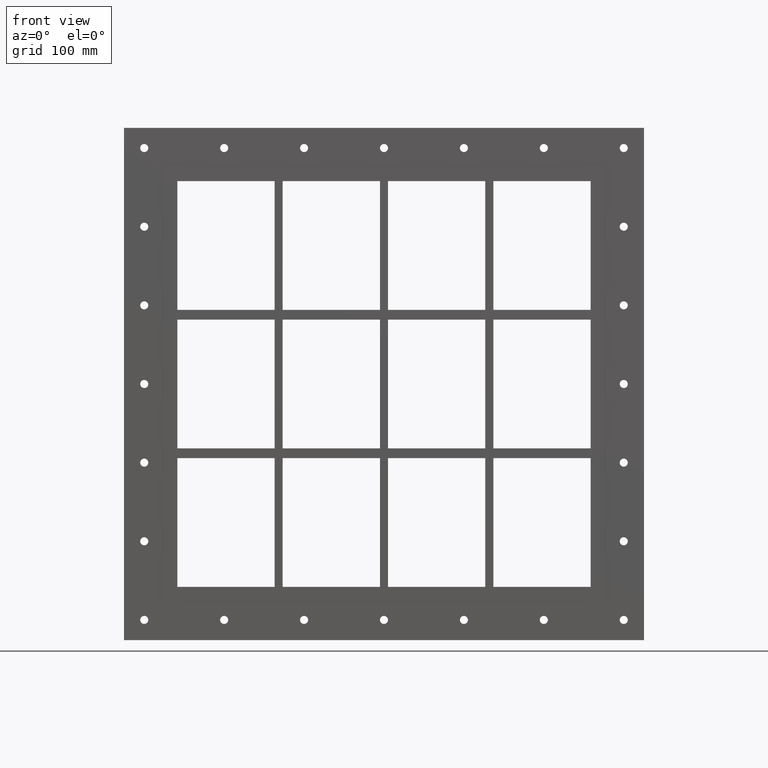
[diagram: clean part render]
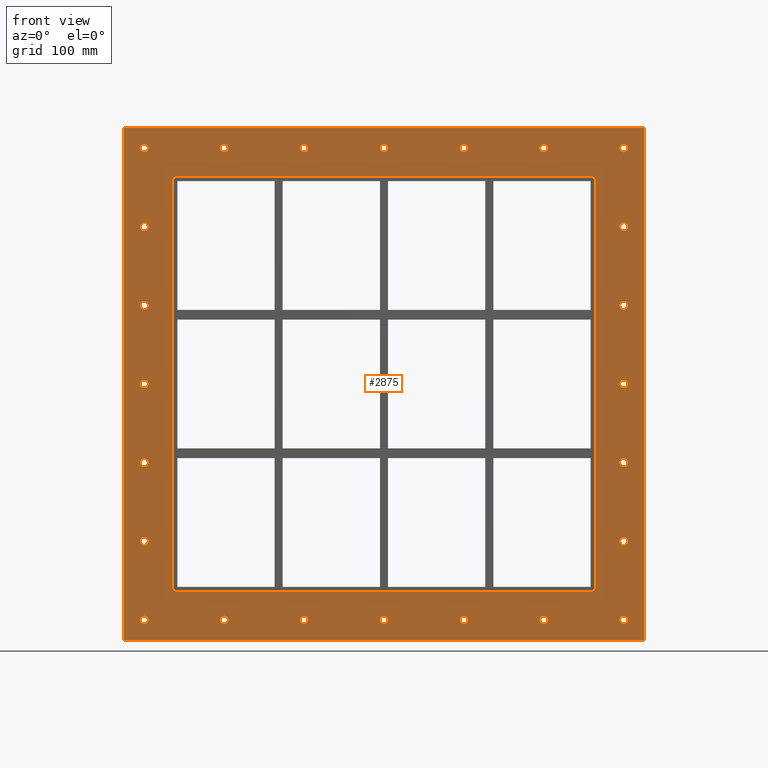
[diagram: same view with one face highlighted and labeled with its STEP entity id]
A machine part, front view. The second image highlights one B-rep face of the part: STEP entity #2875.
In plain terms, the highlighted planar face has unit normal (0, 1, 0).
Its self-contained STEP definition (entity closure, byte-faithful):
#84=CARTESIAN_POINT('',(-292.0,0.0,-292.25000000000006));
#85=VERTEX_POINT('',#84);
#86=CARTESIAN_POINT('',(-297.0,0.0,-292.25000000000006));
#87=DIRECTION('',(0.0,1.0,0.0));
#88=DIRECTION('',(1.0,0.0,0.0));
#89=AXIS2_PLACEMENT_3D('',#86,#87,#88);
#90=CIRCLE('',#89,5.0);
#91=EDGE_CURVE('',#85,#85,#90,.T.);
#112=CARTESIAN_POINT('',(302.00000000000006,0.0,-194.83000000000001));
#113=VERTEX_POINT('',#112);
#114=CARTESIAN_POINT('',(297.00000000000006,0.0,-194.83000000000001));
#115=DIRECTION('',(0.0,1.0,0.0));
#116=DIRECTION('',(1.0,0.0,0.0));
#117=AXIS2_PLACEMENT_3D('',#114,#115,#116);
#118=CIRCLE('',#117,5.0);
#119=EDGE_CURVE('',#113,#113,#118,.T.);
#140=CARTESIAN_POINT('',(-292.0,0.0,-194.83000000000001));
#141=VERTEX_POINT('',#140);
#142=CARTESIAN_POINT('',(-297.0,0.0,-194.83000000000001));
#143=DIRECTION('',(0.0,1.0,0.0));
#144=DIRECTION('',(1.0,0.0,0.0));
#145=AXIS2_PLACEMENT_3D('',#142,#143,#144);
#146=CIRCLE('',#145,5.0);
#147=EDGE_CURVE('',#141,#141,#146,.T.);
#168=CARTESIAN_POINT('',(302.00000000000006,0.0,-97.409999999999997));
#169=VERTEX_POINT('',#168);
#170=CARTESIAN_POINT('',(297.00000000000006,0.0,-97.409999999999997));
#171=DIRECTION('',(0.0,1.0,0.0));
#172=DIRECTION('',(1.0,0.0,0.0));
#173=AXIS2_PLACEMENT_3D('',#170,#171,#172);
#174=CIRCLE('',#173,5.0);
#175=EDGE_CURVE('',#169,#169,#174,.T.);
#196=CARTESIAN_POINT('',(-292.0,0.0,-97.409999999999997));
#197=VERTEX_POINT('',#196);
#198=CARTESIAN_POINT('',(-297.0,0.0,-97.409999999999997));
#199=DIRECTION('',(0.0,1.0,0.0));
#200=DIRECTION('',(1.0,0.0,0.0));
#201=AXIS2_PLACEMENT_3D('',#198,#199,#200);
#202=CIRCLE('',#201,5.0);
#203=EDGE_CURVE('',#197,#197,#202,.T.);
#224=CARTESIAN_POINT('',(302.00000000000006,0.0,0.010000000000012));
#225=VERTEX_POINT('',#224);
#226=CARTESIAN_POINT('',(297.00000000000006,0.0,0.010000000000012));
#227=DIRECTION('',(0.0,1.0,0.0));
#228=DIRECTION('',(1.0,0.0,0.0));
#229=AXIS2_PLACEMENT_3D('',#226,#227,#228);
#230=CIRCLE('',#229,5.0);
#231=EDGE_CURVE('',#225,#225,#230,.T.);
#252=CARTESIAN_POINT('',(-292.0,0.0,0.010000000000012));
#253=VERTEX_POINT('',#252);
#254=CARTESIAN_POINT('',(-297.0,0.0,0.010000000000012));
#255=DIRECTION('',(0.0,1.0,0.0));
#256=DIRECTION('',(1.0,0.0,0.0));
#257=AXIS2_PLACEMENT_3D('',#254,#255,#256);
#258=CIRCLE('',#257,5.0);
#259=EDGE_CURVE('',#253,#253,#258,.T.);
#280=CARTESIAN_POINT('',(302.00000000000006,0.0,97.430000000000021));
#281=VERTEX_POINT('',#280);
#282=CARTESIAN_POINT('',(297.00000000000006,0.0,97.430000000000021));
#283=DIRECTION('',(0.0,1.0,0.0));
#284=DIRECTION('',(1.0,0.0,0.0));
#285=AXIS2_PLACEMENT_3D('',#282,#283,#284);
#286=CIRCLE('',#285,5.0);
#287=EDGE_CURVE('',#281,#281,#286,.T.);
#308=CARTESIAN_POINT('',(-292.0,0.0,97.430000000000021));
#309=VERTEX_POINT('',#308);
#310=CARTESIAN_POINT('',(-297.0,0.0,97.430000000000021));
#311=DIRECTION('',(0.0,1.0,0.0));
#312=DIRECTION('',(1.0,0.0,0.0));
#313=AXIS2_PLACEMENT_3D('',#310,#311,#312);
#314=CIRCLE('',#313,5.0);
#315=EDGE_CURVE('',#309,#309,#314,.T.);
#336=CARTESIAN_POINT('',(302.00000000000006,0.0,194.85000000000002));
#337=VERTEX_POINT('',#336);
#338=CARTESIAN_POINT('',(297.00000000000006,0.0,194.85000000000002));
#339=DIRECTION('',(0.0,1.0,0.0));
#340=DIRECTION('',(1.0,0.0,0.0));
#341=AXIS2_PLACEMENT_3D('',#338,#339,#340);
#342=CIRCLE('',#341,5.0);
#343=EDGE_CURVE('',#337,#337,#342,.T.);
#364=CARTESIAN_POINT('',(-292.0,0.0,194.85000000000002));
#365=VERTEX_POINT('',#364);
#366=CARTESIAN_POINT('',(-297.0,0.0,194.85000000000002));
#367=DIRECTION('',(0.0,1.0,0.0));
#368=DIRECTION('',(1.0,0.0,0.0));
#369=AXIS2_PLACEMENT_3D('',#366,#367,#368);
#370=CIRCLE('',#369,5.0);
#371=EDGE_CURVE('',#365,#365,#370,.T.);
#392=CARTESIAN_POINT('',(-192.99999999999997,0.0,292.27000000000004));
#393=VERTEX_POINT('',#392);
#394=CARTESIAN_POINT('',(-197.99999999999997,0.0,292.27000000000004));
#395=DIRECTION('',(0.0,1.0,0.0));
#396=DIRECTION('',(1.0,0.0,0.0));
#397=AXIS2_PLACEMENT_3D('',#394,#395,#396);
#398=CIRCLE('',#397,5.0);
#399=EDGE_CURVE('',#393,#393,#398,.T.);
#420=CARTESIAN_POINT('',(-192.99999999999997,0.0,-292.25));
#421=VERTEX_POINT('',#420);
#422=CARTESIAN_POINT('',(-197.99999999999997,0.0,-292.25));
#423=DIRECTION('',(0.0,1.0,0.0));
#424=DIRECTION('',(1.0,0.0,0.0));
#425=AXIS2_PLACEMENT_3D('',#422,#423,#424);
#426=CIRCLE('',#425,5.0);
#427=EDGE_CURVE('',#421,#421,#426,.T.);
#448=CARTESIAN_POINT('',(-93.999999999999972,0.0,292.27000000000004));
#449=VERTEX_POINT('',#448);
#450=CARTESIAN_POINT('',(-98.999999999999972,0.0,292.27000000000004));
#451=DIRECTION('',(0.0,1.0,0.0));
#452=DIRECTION('',(1.0,0.0,0.0));
#453=AXIS2_PLACEMENT_3D('',#450,#451,#452);
#454=CIRCLE('',#453,5.0);
#455=EDGE_CURVE('',#449,#449,#454,.T.);
#476=CARTESIAN_POINT('',(-93.999999999999972,0.0,-292.25));
#477=VERTEX_POINT('',#476);
#478=CARTESIAN_POINT('',(-98.999999999999972,0.0,-292.25));
#479=DIRECTION('',(0.0,1.0,0.0));
#480=DIRECTION('',(1.0,0.0,0.0));
#481=AXIS2_PLACEMENT_3D('',#478,#479,#480);
#482=CIRCLE('',#481,5.0);
#483=EDGE_CURVE('',#477,#477,#482,.T.);
#504=CARTESIAN_POINT('',(5.000000000000018,0.0,292.27000000000004));
#505=VERTEX_POINT('',#504);
#506=CARTESIAN_POINT('',(1.776357E-014,0.0,292.27000000000004));
#507=DIRECTION('',(0.0,1.0,0.0));
#508=DIRECTION('',(1.0,0.0,0.0));
#509=AXIS2_PLACEMENT_3D('',#506,#507,#508);
#510=CIRCLE('',#509,5.0);
#511=EDGE_CURVE('',#505,#505,#510,.T.);
#532=CARTESIAN_POINT('',(5.000000000000018,0.0,-292.25));
#533=VERTEX_POINT('',#532);
#534=CARTESIAN_POINT('',(1.776357E-014,0.0,-292.25));
#535=DIRECTION('',(0.0,1.0,0.0));
#536=DIRECTION('',(1.0,0.0,0.0));
#537=AXIS2_PLACEMENT_3D('',#534,#535,#536);
#538=CIRCLE('',#537,5.0);
#539=EDGE_CURVE('',#533,#533,#538,.T.);
#560=CARTESIAN_POINT('',(104.00000000000004,0.0,292.27000000000004));
#561=VERTEX_POINT('',#560);
#562=CARTESIAN_POINT('',(99.000000000000043,0.0,292.27000000000004));
#563=DIRECTION('',(0.0,1.0,0.0));
#564=DIRECTION('',(1.0,0.0,0.0));
#565=AXIS2_PLACEMENT_3D('',#562,#563,#564);
#566=CIRCLE('',#565,5.0);
#567=EDGE_CURVE('',#561,#561,#566,.T.);
#588=CARTESIAN_POINT('',(104.00000000000004,0.0,-292.25));
#589=VERTEX_POINT('',#588);
#590=CARTESIAN_POINT('',(99.000000000000043,0.0,-292.25));
#591=DIRECTION('',(0.0,1.0,0.0));
#592=DIRECTION('',(1.0,0.0,0.0));
#593=AXIS2_PLACEMENT_3D('',#590,#591,#592);
#594=CIRCLE('',#593,5.0);
#595=EDGE_CURVE('',#589,#589,#594,.T.);
#616=CARTESIAN_POINT('',(203.00000000000006,0.0,292.27000000000004));
#617=VERTEX_POINT('',#616);
#618=CARTESIAN_POINT('',(198.00000000000006,0.0,292.27000000000004));
#619=DIRECTION('',(0.0,1.0,0.0));
#620=DIRECTION('',(1.0,0.0,0.0));
#621=AXIS2_PLACEMENT_3D('',#618,#619,#620);
#622=CIRCLE('',#621,5.0);
#623=EDGE_CURVE('',#617,#617,#622,.T.);
#644=CARTESIAN_POINT('',(203.00000000000006,0.0,-292.25));
#645=VERTEX_POINT('',#644);
#646=CARTESIAN_POINT('',(198.00000000000006,0.0,-292.25));
#647=DIRECTION('',(0.0,1.0,0.0));
#648=DIRECTION('',(1.0,0.0,0.0));
#649=AXIS2_PLACEMENT_3D('',#646,#647,#648);
#650=CIRCLE('',#649,5.0);
#651=EDGE_CURVE('',#645,#645,#650,.T.);
#672=CARTESIAN_POINT('',(302.00000000000006,0.0,-292.25));
#673=VERTEX_POINT('',#672);
#674=CARTESIAN_POINT('',(297.00000000000006,0.0,-292.25));
#675=DIRECTION('',(0.0,1.0,0.0));
#676=DIRECTION('',(1.0,0.0,0.0));
#677=AXIS2_PLACEMENT_3D('',#674,#675,#676);
#678=CIRCLE('',#677,5.0);
#679=EDGE_CURVE('',#673,#673,#678,.T.);
#700=CARTESIAN_POINT('',(-292.0,0.0,292.27000000000004));
#701=VERTEX_POINT('',#700);
#702=CARTESIAN_POINT('',(-297.0,0.0,292.27000000000004));
#703=DIRECTION('',(0.0,1.0,0.0));
#704=DIRECTION('',(1.0,0.0,0.0));
#705=AXIS2_PLACEMENT_3D('',#702,#703,#704);
#706=CIRCLE('',#705,5.0);
#707=EDGE_CURVE('',#701,#701,#706,.T.);
#728=CARTESIAN_POINT('',(302.00000000000006,0.0,292.27000000000004));
#729=VERTEX_POINT('',#728);
#730=CARTESIAN_POINT('',(297.00000000000006,0.0,292.27000000000004));
#731=DIRECTION('',(0.0,1.0,0.0));
#732=DIRECTION('',(1.0,0.0,0.0));
#733=AXIS2_PLACEMENT_3D('',#730,#731,#732);
#734=CIRCLE('',#733,5.0);
#735=EDGE_CURVE('',#729,#729,#734,.T.);
#2694=CARTESIAN_POINT('',(2.667661E-014,0.0,8.815787E-015));
#2695=DIRECTION('',(0.0,1.0,0.0));
#2696=DIRECTION('',(0.0,0.0,1.0));
#2697=AXIS2_PLACEMENT_3D('',#2694,#2695,#2696);
#2698=PLANE('',#2697);
#2699=CARTESIAN_POINT('',(-321.99999999999994,0.0,317.25));
#2700=VERTEX_POINT('',#2699);
#2701=CARTESIAN_POINT('',(322.0,0.0,317.25));
#2702=VERTEX_POINT('',#2701);
#2703=CARTESIAN_POINT('',(-321.99999999999994,0.0,317.25));
#2704=DIRECTION('',(1.0,0.0,0.0));
#2705=VECTOR('',#2704,644.0);
#2706=LINE('',#2703,#2705);
#2707=EDGE_CURVE('',#2700,#2702,#2706,.T.);
#2708=ORIENTED_EDGE('',*,*,#2707,.F.);
#2709=CARTESIAN_POINT('',(-321.99999999999994,0.0,-317.25));
#2710=VERTEX_POINT('',#2709);
#2711=CARTESIAN_POINT('',(-321.99999999999994,0.0,-317.25));
#2712=DIRECTION('',(0.0,0.0,1.0));
#2713=VECTOR('',#2712,634.5);
#2714=LINE('',#2711,#2713);
#2715=EDGE_CURVE('',#2710,#2700,#2714,.T.);
#2716=ORIENTED_EDGE('',*,*,#2715,.F.);
#2717=CARTESIAN_POINT('',(322.0,0.0,-317.25));
#2718=VERTEX_POINT('',#2717);
#2719=CARTESIAN_POINT('',(322.0,0.0,-317.25));
#2720=DIRECTION('',(-1.0,0.0,0.0));
#2721=VECTOR('',#2720,644.0);
#2722=LINE('',#2719,#2721);
#2723=EDGE_CURVE('',#2718,#2710,#2722,.T.);
#2724=ORIENTED_EDGE('',*,*,#2723,.F.);
#2725=CARTESIAN_POINT('',(322.0,0.0,317.25));
#2726=DIRECTION('',(0.0,0.0,-1.0));
#2727=VECTOR('',#2726,634.5);
#2728=LINE('',#2725,#2727);
#2729=EDGE_CURVE('',#2702,#2718,#2728,.T.);
#2730=ORIENTED_EDGE('',*,*,#2729,.F.);
#2731=EDGE_LOOP('',(#2708,#2716,#2724,#2730));
#2732=FACE_OUTER_BOUND('',#2731,.T.);
#2733=ORIENTED_EDGE('',*,*,#91,.T.);
#2734=EDGE_LOOP('',(#2733));
#2735=FACE_BOUND('',#2734,.T.);
#2736=ORIENTED_EDGE('',*,*,#119,.T.);
#2737=EDGE_LOOP('',(#2736));
#2738=FACE_BOUND('',#2737,.T.);
#2739=ORIENTED_EDGE('',*,*,#147,.T.);
#2740=EDGE_LOOP('',(#2739));
#2741=FACE_BOUND('',#2740,.T.);
#2742=ORIENTED_EDGE('',*,*,#175,.T.);
#2743=EDGE_LOOP('',(#2742));
#2744=FACE_BOUND('',#2743,.T.);
#2745=ORIENTED_EDGE('',*,*,#203,.T.);
#2746=EDGE_LOOP('',(#2745));
#2747=FACE_BOUND('',#2746,.T.);
#2748=ORIENTED_EDGE('',*,*,#231,.T.);
#2749=EDGE_LOOP('',(#2748));
#2750=FACE_BOUND('',#2749,.T.);
#2751=ORIENTED_EDGE('',*,*,#259,.T.);
#2752=EDGE_LOOP('',(#2751));
#2753=FACE_BOUND('',#2752,.T.);
#2754=ORIENTED_EDGE('',*,*,#287,.T.);
#2755=EDGE_LOOP('',(#2754));
#2756=FACE_BOUND('',#2755,.T.);
#2757=ORIENTED_EDGE('',*,*,#315,.T.);
#2758=EDGE_LOOP('',(#2757));
#2759=FACE_BOUND('',#2758,.T.);
#2760=ORIENTED_EDGE('',*,*,#343,.T.);
#2761=EDGE_LOOP('',(#2760));
#2762=FACE_BOUND('',#2761,.T.);
#2763=ORIENTED_EDGE('',*,*,#371,.T.);
#2764=EDGE_LOOP('',(#2763));
#2765=FACE_BOUND('',#2764,.T.);
#2766=ORIENTED_EDGE('',*,*,#399,.T.);
#2767=EDGE_LOOP('',(#2766));
#2768=FACE_BOUND('',#2767,.T.);
#2769=ORIENTED_EDGE('',*,*,#427,.T.);
#2770=EDGE_LOOP('',(#2769));
#2771=FACE_BOUND('',#2770,.T.);
#2772=ORIENTED_EDGE('',*,*,#455,.T.);
#2773=EDGE_LOOP('',(#2772));
#2774=FACE_BOUND('',#2773,.T.);
#2775=ORIENTED_EDGE('',*,*,#483,.T.);
#2776=EDGE_LOOP('',(#2775));
#2777=FACE_BOUND('',#2776,.T.);
#2778=ORIENTED_EDGE('',*,*,#511,.T.);
#2779=EDGE_LOOP('',(#2778));
#2780=FACE_BOUND('',#2779,.T.);
#2781=ORIENTED_EDGE('',*,*,#539,.T.);
#2782=EDGE_LOOP('',(#2781));
#2783=FACE_BOUND('',#2782,.T.);
#2784=ORIENTED_EDGE('',*,*,#567,.T.);
#2785=EDGE_LOOP('',(#2784));
#2786=FACE_BOUND('',#2785,.T.);
#2787=ORIENTED_EDGE('',*,*,#595,.T.);
#2788=EDGE_LOOP('',(#2787));
#2789=FACE_BOUND('',#2788,.T.);
#2790=ORIENTED_EDGE('',*,*,#623,.T.);
#2791=EDGE_LOOP('',(#2790));
#2792=FACE_BOUND('',#2791,.T.);
#2793=ORIENTED_EDGE('',*,*,#651,.T.);
#2794=EDGE_LOOP('',(#2793));
#2795=FACE_BOUND('',#2794,.T.);
#2796=ORIENTED_EDGE('',*,*,#679,.T.);
#2797=EDGE_LOOP('',(#2796));
#2798=FACE_BOUND('',#2797,.T.);
#2799=ORIENTED_EDGE('',*,*,#707,.T.);
#2800=EDGE_LOOP('',(#2799));
#2801=FACE_BOUND('',#2800,.T.);
#2802=ORIENTED_EDGE('',*,*,#735,.T.);
#2803=EDGE_LOOP('',(#2802));
#2804=FACE_BOUND('',#2803,.T.);
#2805=CARTESIAN_POINT('',(-262.00000000000006,0.0,-251.25));
#2806=VERTEX_POINT('',#2805);
#2807=CARTESIAN_POINT('',(-256.00000000000006,0.0,-257.25));
#2808=VERTEX_POINT('',#2807);
#2809=CARTESIAN_POINT('',(-256.00000000000006,0.0,-251.25));
#2810=DIRECTION('',(0.0,-1.0,0.0));
#2811=DIRECTION('',(-0.707106781186548,0.0,-0.707106781186548));
#2812=AXIS2_PLACEMENT_3D('',#2809,#2810,#2811);
#2813=CIRCLE('',#2812,6.000000000000002);
#2814=EDGE_CURVE('',#2806,#2808,#2813,.T.);
#2815=ORIENTED_EDGE('',*,*,#2814,.F.);
#2816=CARTESIAN_POINT('',(-262.00000000000006,0.0,251.25));
#2817=VERTEX_POINT('',#2816);
#2818=CARTESIAN_POINT('',(-262.00000000000006,0.0,251.25));
#2819=DIRECTION('',(0.0,0.0,-1.0));
#2820=VECTOR('',#2819,502.5);
#2821=LINE('',#2818,#2820);
#2822=EDGE_CURVE('',#2817,#2806,#2821,.T.);
#2823=ORIENTED_EDGE('',*,*,#2822,.F.);
#2824=CARTESIAN_POINT('',(-256.00000000000011,0.0,257.25));
#2825=VERTEX_POINT('',#2824);
#2826=CARTESIAN_POINT('',(-256.00000000000011,0.0,251.25));
#2827=DIRECTION('',(0.0,-1.0,0.0));
#2828=DIRECTION('',(-0.707106781186543,0.0,0.707106781186552));
#2829=AXIS2_PLACEMENT_3D('',#2826,#2827,#2828);
#2830=CIRCLE('',#2829,6.000000000000001);
#2831=EDGE_CURVE('',#2825,#2817,#2830,.T.);
#2832=ORIENTED_EDGE('',*,*,#2831,.F.);
#2833=CARTESIAN_POINT('',(256.0,0.0,257.25));
#2834=VERTEX_POINT('',#2833);
#2835=CARTESIAN_POINT('',(256.0,0.0,257.25));
#2836=DIRECTION('',(-1.0,0.0,0.0));
#2837=VECTOR('',#2836,512.00000000000011);
#2838=LINE('',#2835,#2837);
#2839=EDGE_CURVE('',#2834,#2825,#2838,.T.);
#2840=ORIENTED_EDGE('',*,*,#2839,.F.);
#2841=CARTESIAN_POINT('',(262.0,0.0,251.25));
#2842=VERTEX_POINT('',#2841);
#2843=CARTESIAN_POINT('',(256.0,0.0,251.25));
#2844=DIRECTION('',(0.0,-1.0,0.0));
#2845=DIRECTION('',(0.707106781186548,0.0,0.707106781186548));
#2846=AXIS2_PLACEMENT_3D('',#2843,#2844,#2845);
#2847=CIRCLE('',#2846,6.000000000000002);
#2848=EDGE_CURVE('',#2842,#2834,#2847,.T.);
#2849=ORIENTED_EDGE('',*,*,#2848,.F.);
#2850=CARTESIAN_POINT('',(262.0,0.0,-251.25));
#2851=VERTEX_POINT('',#2850);
#2852=CARTESIAN_POINT('',(262.0,0.0,-251.25));
#2853=DIRECTION('',(0.0,0.0,1.0));
#2854=VECTOR('',#2853,502.5);
#2855=LINE('',#2852,#2854);
#2856=EDGE_CURVE('',#2851,#2842,#2855,.T.);
#2857=ORIENTED_EDGE('',*,*,#2856,.F.);
#2858=CARTESIAN_POINT('',(256.0,0.0,-257.25));
#2859=VERTEX_POINT('',#2858);
#2860=CARTESIAN_POINT('',(256.0,0.0,-251.25));
#2861=DIRECTION('',(0.0,-1.0,0.0));
#2862=DIRECTION('',(0.707106781186548,0.0,-0.707106781186548));
#2863=AXIS2_PLACEMENT_3D('',#2860,#2861,#2862);
#2864=CIRCLE('',#2863,6.000000000000002);
#2865=EDGE_CURVE('',#2859,#2851,#2864,.T.);
#2866=ORIENTED_EDGE('',*,*,#2865,.F.);
#2867=CARTESIAN_POINT('',(-256.0,0.0,-257.25));
#2868=DIRECTION('',(1.0,0.0,0.0));
#2869=VECTOR('',#2868,512.0);
#2870=LINE('',#2867,#2869);
#2871=EDGE_CURVE('',#2808,#2859,#2870,.T.);
#2872=ORIENTED_EDGE('',*,*,#2871,.F.);
#2873=EDGE_LOOP('',(#2815,#2823,#2832,#2840,#2849,#2857,#2866,#2872));
#2874=FACE_BOUND('',#2873,.T.);
#2875=ADVANCED_FACE('',(#2732,#2735,#2738,#2741,#2744,#2747,#2750,#2753,#2756,#2759,#2762,#2765,#2768,#2771,#2774,#2777,#2780,#2783,#2786,#2789,#2792,#2795,#2798,#2801,#2804,#2874),#2698,.F.);